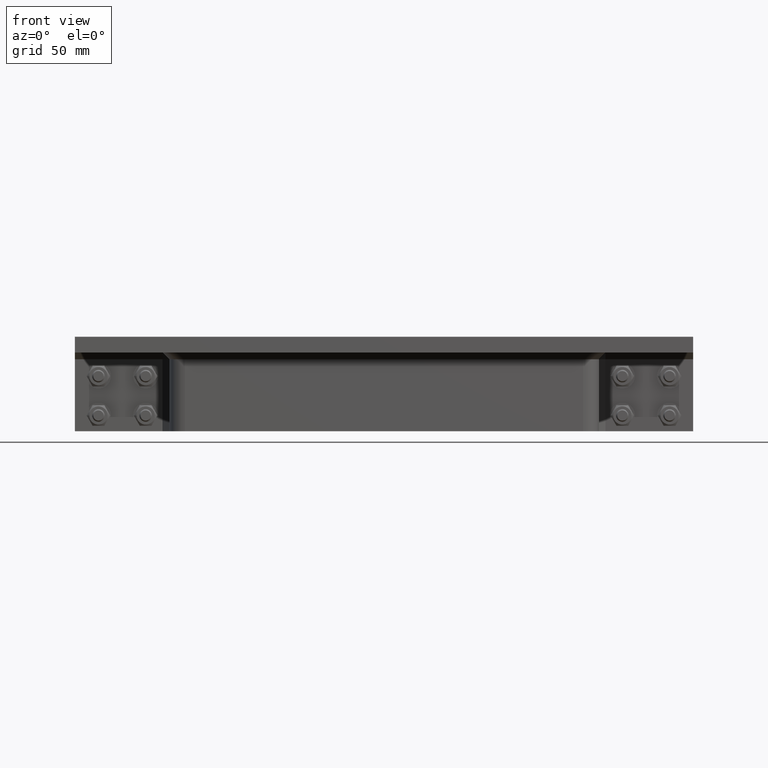
[diagram: clean part render]
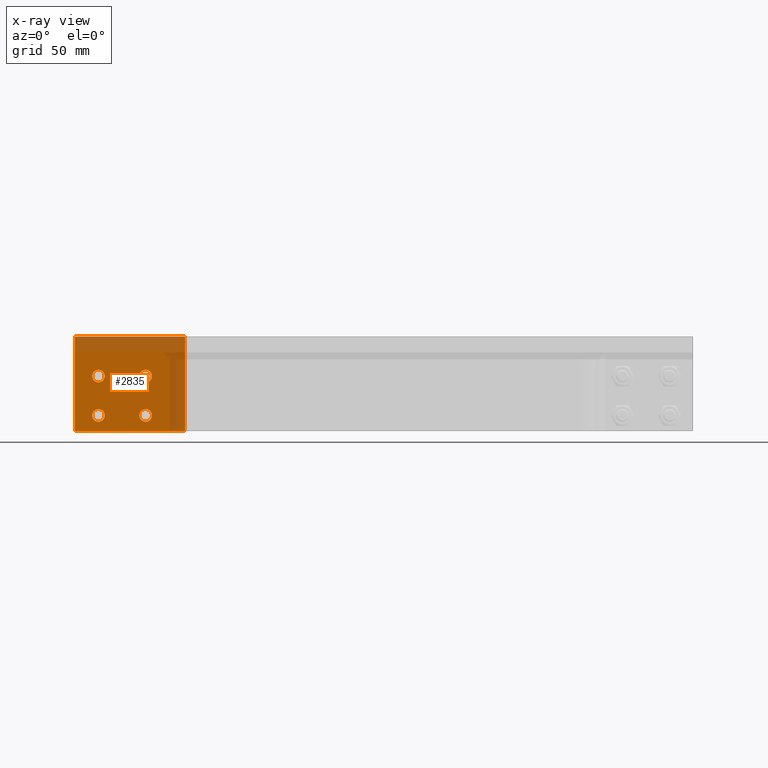
[diagram: x-ray — body ghosted, one internal face saturated and labeled with its STEP entity id]
A machine part, front view, then the same camera in x-ray: the body is ghosted and one INTERNAL B-rep face — a face not visible from any outside direction — is saturated and labeled: STEP entity #2835.
In plain terms, the highlighted planar face has unit normal (0, 1, 0).
Its self-contained STEP definition (entity closure, byte-faithful):
#285=FACE_BOUND('',#764,.T.);
#286=FACE_BOUND('',#765,.T.);
#287=FACE_BOUND('',#766,.T.);
#288=FACE_BOUND('',#767,.T.);
#380=CIRCLE('',#3279,4.);
#382=CIRCLE('',#3282,4.);
#384=CIRCLE('',#3285,4.);
#386=CIRCLE('',#3288,4.);
#540=FACE_OUTER_BOUND('',#763,.T.);
#763=EDGE_LOOP('',(#2377,#2378,#2379,#2380));
#764=EDGE_LOOP('',(#2381));
#765=EDGE_LOOP('',(#2382));
#766=EDGE_LOOP('',(#2383));
#767=EDGE_LOOP('',(#2384));
#998=LINE('',#4743,#1217);
#1002=LINE('',#4751,#1221);
#1005=LINE('',#4757,#1224);
#1008=LINE('',#4762,#1227);
#1217=VECTOR('',#3926,10.);
#1221=VECTOR('',#3932,10.);
#1224=VECTOR('',#3937,10.);
#1227=VECTOR('',#3942,10.);
#1431=VERTEX_POINT('',#4719);
#1433=VERTEX_POINT('',#4725);
#1435=VERTEX_POINT('',#4731);
#1437=VERTEX_POINT('',#4737);
#1438=VERTEX_POINT('',#4741);
#1439=VERTEX_POINT('',#4742);
#1442=VERTEX_POINT('',#4750);
#1444=VERTEX_POINT('',#4756);
#1751=EDGE_CURVE('',#1431,#1431,#380,.T.);
#1754=EDGE_CURVE('',#1433,#1433,#382,.T.);
#1757=EDGE_CURVE('',#1435,#1435,#384,.T.);
#1760=EDGE_CURVE('',#1437,#1437,#386,.T.);
#1761=EDGE_CURVE('',#1438,#1439,#998,.T.);
#1765=EDGE_CURVE('',#1439,#1442,#1002,.T.);
#1768=EDGE_CURVE('',#1442,#1444,#1005,.T.);
#1771=EDGE_CURVE('',#1444,#1438,#1008,.T.);
#2377=ORIENTED_EDGE('',*,*,#1771,.T.);
#2378=ORIENTED_EDGE('',*,*,#1761,.T.);
#2379=ORIENTED_EDGE('',*,*,#1765,.T.);
#2380=ORIENTED_EDGE('',*,*,#1768,.T.);
#2381=ORIENTED_EDGE('',*,*,#1751,.T.);
#2382=ORIENTED_EDGE('',*,*,#1754,.T.);
#2383=ORIENTED_EDGE('',*,*,#1757,.T.);
#2384=ORIENTED_EDGE('',*,*,#1760,.T.);
#2705=PLANE('',#3293);
#2835=ADVANCED_FACE('',(#540,#285,#286,#287,#288),#2705,.F.);
#3279=AXIS2_PLACEMENT_3D('',#4721,#3901,#3902);
#3282=AXIS2_PLACEMENT_3D('',#4727,#3908,#3909);
#3285=AXIS2_PLACEMENT_3D('',#4733,#3915,#3916);
#3288=AXIS2_PLACEMENT_3D('',#4739,#3922,#3923);
#3293=AXIS2_PLACEMENT_3D('',#4764,#3944,#3945);
#3901=DIRECTION('center_axis',(0.,0.,1.));
#3902=DIRECTION('ref_axis',(1.,0.,0.));
#3908=DIRECTION('center_axis',(0.,0.,1.));
#3909=DIRECTION('ref_axis',(1.,0.,0.));
#3915=DIRECTION('center_axis',(0.,0.,1.));
#3916=DIRECTION('ref_axis',(1.,0.,0.));
#3922=DIRECTION('center_axis',(0.,0.,1.));
#3923=DIRECTION('ref_axis',(1.,0.,0.));
#3926=DIRECTION('',(2.22044604925031E-16,-1.,0.));
#3932=DIRECTION('',(-1.,0.,0.));
#3937=DIRECTION('',(2.22044604925031E-16,1.,0.));
#3942=DIRECTION('',(1.,0.,0.));
#3944=DIRECTION('center_axis',(0.,0.,1.));
#3945=DIRECTION('ref_axis',(1.,0.,0.));
#4719=CARTESIAN_POINT('',(16.,-20.,0.));
#4721=CARTESIAN_POINT('Origin',(20.,-20.,0.));
#4725=CARTESIAN_POINT('',(-14.,5.00000000000001,0.));
#4727=CARTESIAN_POINT('Origin',(-9.99999999999997,5.00000000000001,0.));
#4731=CARTESIAN_POINT('',(16.,5.00000000000001,0.));
#4733=CARTESIAN_POINT('Origin',(20.,5.00000000000001,0.));
#4737=CARTESIAN_POINT('',(-14.,-20.,0.));
#4739=CARTESIAN_POINT('Origin',(-9.99999999999998,-20.,0.));
#4741=CARTESIAN_POINT('',(35.,30.,0.));
#4742=CARTESIAN_POINT('',(35.,-30.,0.));
#4743=CARTESIAN_POINT('',(35.,30.,0.));
#4750=CARTESIAN_POINT('',(-35.,-30.,0.));
#4751=CARTESIAN_POINT('',(35.,-30.,0.));
#4756=CARTESIAN_POINT('',(-35.,30.,0.));
#4757=CARTESIAN_POINT('',(-35.,-30.,0.));
#4762=CARTESIAN_POINT('',(-35.,30.,0.));
#4764=CARTESIAN_POINT('Origin',(0.,5.12410626750072E-15,0.));